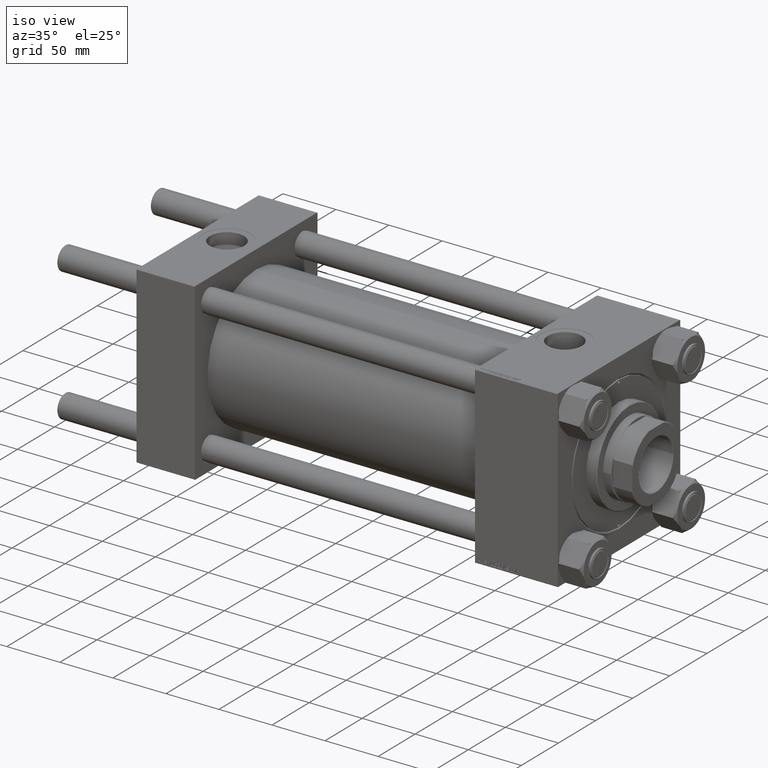
[diagram: clean part render]
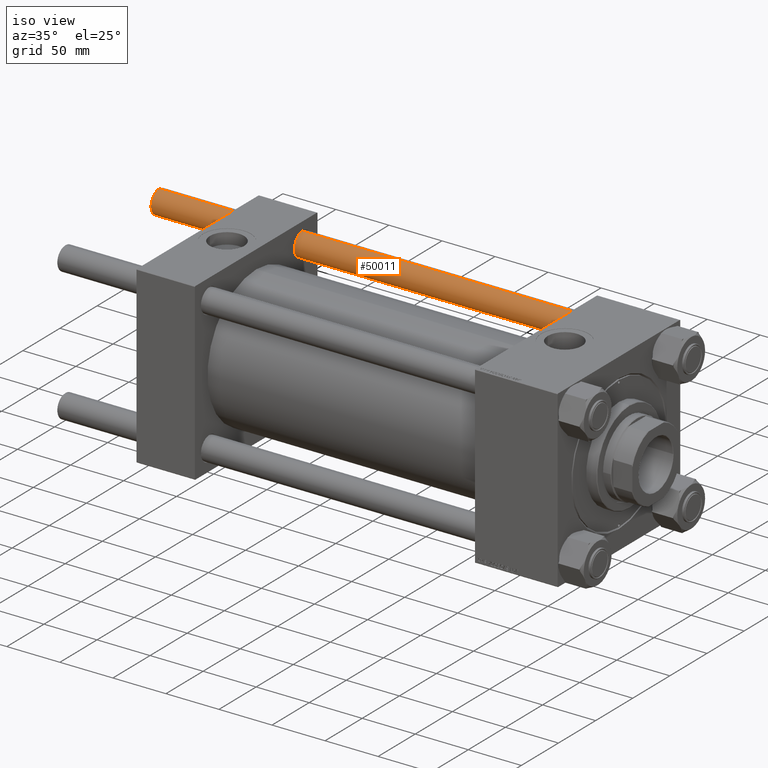
[diagram: same view with one face highlighted and labeled with its STEP entity id]
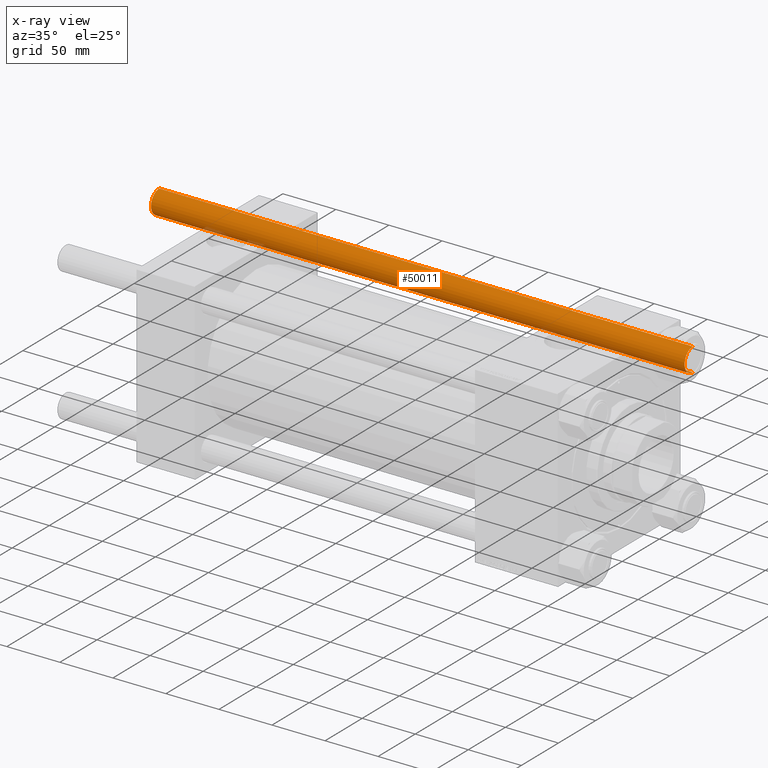
[diagram: x-ray of the same camera — body ghosted, the highlighted face saturated]
A machine part, iso view. The second image highlights one B-rep face of the part: STEP entity #50011.
The next image is the same camera in x-ray: the body ghosted, the highlighted face saturated — about 1% of this face is hidden behind the body in this view.
In plain terms, the highlighted cylindrical surface (edge-blend (fillet) strip) has radius 11 mm, axis along (-1, -0, -0).
Its self-contained STEP definition (entity closure, byte-faithful):
#84 = DIRECTION ( 'NONE',  ( 1.000000000000000000, 0.000000000000000000, 0.000000000000000000 ) ) ;
#169 = CARTESIAN_POINT ( 'NONE',  ( 0.000000000000000000, 0.000000000000000000, 504.0000000000000000 ) ) ;
#923 = EDGE_CURVE ( 'NONE', #45524, #23891, #39439, .T. ) ;
#3655 = DIRECTION ( 'NONE',  ( 0.000000000000000000, 0.000000000000000000, -1.000000000000000000 ) ) ;
#5987 = DIRECTION ( 'NONE',  ( -0.000000000000000000, -0.000000000000000000, -1.000000000000000000 ) ) ;
#6499 = LINE ( 'NONE', #37640, #46635 ) ;
#7371 = CIRCLE ( 'NONE', #35095, 11.00000000000000000 ) ;
#7738 = ORIENTED_EDGE ( 'NONE', *, *, #40990, .F. ) ;
#7747 = CARTESIAN_POINT ( 'NONE',  ( 0.000000000000000000, 0.000000000000000000, 503.5000000000001705 ) ) ;
#11398 = FACE_OUTER_BOUND ( 'NONE', #40289, .T. ) ;
#19458 = DIRECTION ( 'NONE',  ( -0.000000000000000000, -0.000000000000000000, 1.000000000000000000 ) ) ;
#19693 = DIRECTION ( 'NONE',  ( 1.000000000000000000, 0.000000000000000000, 0.000000000000000000 ) ) ;
#23370 = CYLINDRICAL_SURFACE ( 'NONE', #43569, 11.00000000000000000 ) ;
#23891 = VERTEX_POINT ( 'NONE', #25498 ) ;
#24676 = VECTOR ( 'NONE', #35251, 1000.000000000000000 ) ;
#25498 = CARTESIAN_POINT ( 'NONE',  ( 11.00000000000000000, 1.347111479062088405E-15, 0.5000000000000559552 ) ) ;
#26391 = AXIS2_PLACEMENT_3D ( 'NONE', #38884, #19458, #84 ) ;
#27339 = CARTESIAN_POINT ( 'NONE',  ( -11.00000000000000000, 0.000000000000000000, 504.0000000000000000 ) ) ;
#28798 = CARTESIAN_POINT ( 'NONE',  ( -11.00000000000000000, 0.000000000000000000, 503.5000000000001705 ) ) ;
#29898 = VERTEX_POINT ( 'NONE', #41717 ) ;
#31658 = LINE ( 'NONE', #27339, #24676 ) ;
#32198 = VERTEX_POINT ( 'NONE', #28798 ) ;
#35095 = AXIS2_PLACEMENT_3D ( 'NONE', #7747, #3655, #19693 ) ;
#35251 = DIRECTION ( 'NONE',  ( -0.000000000000000000, -0.000000000000000000, -1.000000000000000000 ) ) ;
#35627 = DIRECTION ( 'NONE',  ( -1.000000000000000000, 0.000000000000000000, 0.000000000000000000 ) ) ;
#36261 = EDGE_CURVE ( 'NONE', #29898, #32198, #7371, .T. ) ;
#37640 = CARTESIAN_POINT ( 'NONE',  ( 11.00000000000000000, 1.347111479062088405E-15, 504.0000000000000000 ) ) ;
#38463 = DIRECTION ( 'NONE',  ( -0.000000000000000000, -0.000000000000000000, -1.000000000000000000 ) ) ;
#38863 = CARTESIAN_POINT ( 'NONE',  ( -11.00000000000000000, 0.000000000000000000, 0.5000000000000559552 ) ) ;
#38884 = CARTESIAN_POINT ( 'NONE',  ( 0.000000000000000000, 0.000000000000000000, 0.5000000000000559552 ) ) ;
#39352 = ORIENTED_EDGE ( 'NONE', *, *, #923, .T. ) ;
#39439 = CIRCLE ( 'NONE', #26391, 11.00000000000000000 ) ;
#40289 = EDGE_LOOP ( 'NONE', ( #7738, #46326, #44824, #39352 ) ) ;
#40990 = EDGE_CURVE ( 'NONE', #29898, #23891, #6499, .T. ) ;
#41717 = CARTESIAN_POINT ( 'NONE',  ( 11.00000000000000000, 1.347111479062088405E-15, 503.5000000000001705 ) ) ;
#43569 = AXIS2_PLACEMENT_3D ( 'NONE', #169, #38463, #35627 ) ;
#44824 = ORIENTED_EDGE ( 'NONE', *, *, #47099, .T. ) ;
#45524 = VERTEX_POINT ( 'NONE', #38863 ) ;
#46326 = ORIENTED_EDGE ( 'NONE', *, *, #36261, .T. ) ;
#46635 = VECTOR ( 'NONE', #5987, 1000.000000000000000 ) ;
#47099 = EDGE_CURVE ( 'NONE', #32198, #45524, #31658, .T. ) ;
#50011 = ADVANCED_FACE ( 'NONE', ( #11398 ), #23370, .T. ) ;